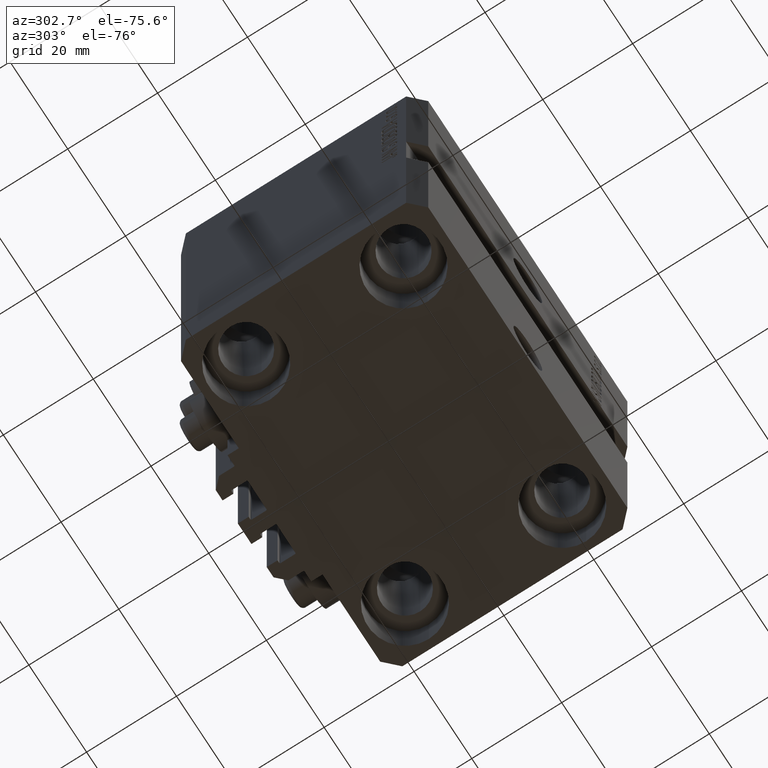
[diagram: clean part render]
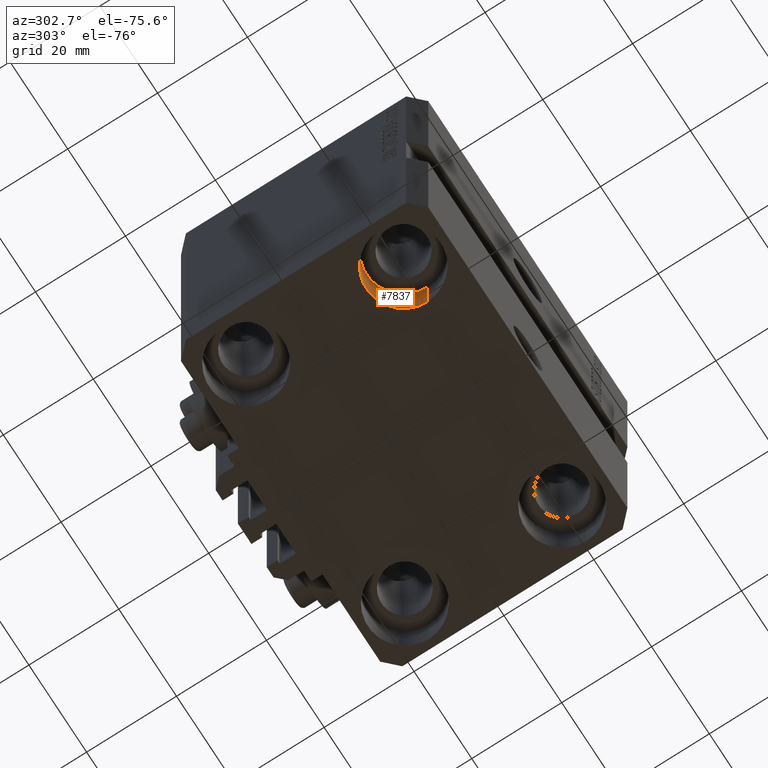
[diagram: same view with one face highlighted and labeled with its STEP entity id]
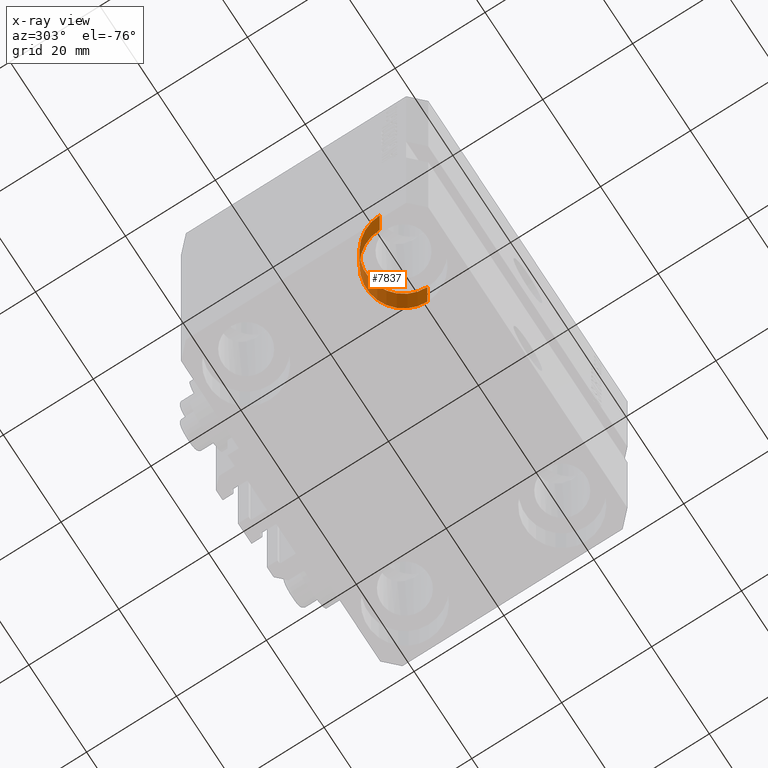
[diagram: x-ray of the same camera — body ghosted, the highlighted face saturated]
A machine part, auxiliary view. The second image highlights one B-rep face of the part: STEP entity #7837.
The next image is the same camera in x-ray: the body ghosted, the highlighted face saturated — about 0% of this face is hidden behind the body in this view.
In plain terms, the highlighted cylindrical surface (partial cylindrical patch) has radius 8.25 mm, axis along (-0, -0, -1).
Its self-contained STEP definition (entity closure, byte-faithful):
#519 = VECTOR ( 'NONE', #42069, 1000.000000000000000 ) ;
#548 = CARTESIAN_POINT ( 'NONE',  ( -19.25000000000000355, -17.50000000000000000, -69.00000000000000000 ) ) ;
#860 = ORIENTED_EDGE ( 'NONE', *, *, #17240, .T. ) ;
#1710 = CIRCLE ( 'NONE', #34981, 8.250000000000000000 ) ;
#1987 = CIRCLE ( 'NONE', #5667, 8.250000000000000000 ) ;
#2117 = CARTESIAN_POINT ( 'NONE',  ( -35.75000000000000711, -17.50000000000000000, -69.00000000000000000 ) ) ;
#4076 = EDGE_CURVE ( 'NONE', #44879, #23523, #1710, .T. ) ;
#5261 = EDGE_CURVE ( 'NONE', #44879, #27814, #32540, .T. ) ;
#5363 = DIRECTION ( 'NONE',  ( 1.000000000000000000, 0.000000000000000000, 0.000000000000000000 ) ) ;
#5667 = AXIS2_PLACEMENT_3D ( 'NONE', #19569, #34022, #5363 ) ;
#7779 = VERTEX_POINT ( 'NONE', #19137 ) ;
#7837 = ADVANCED_FACE ( 'NONE', ( #44026 ), #25999, .F. ) ;
#11207 = CARTESIAN_POINT ( 'NONE',  ( -27.50000000000000355, -17.50000000000000000, -69.00000000000000000 ) ) ;
#11663 = EDGE_CURVE ( 'NONE', #27814, #7779, #1987, .T. ) ;
#13198 = EDGE_LOOP ( 'NONE', ( #45162, #32243, #860, #28675 ) ) ;
#14738 = DIRECTION ( 'NONE',  ( 1.000000000000000000, 0.000000000000000000, 0.000000000000000000 ) ) ;
#17240 = EDGE_CURVE ( 'NONE', #23523, #7779, #30687, .T. ) ;
#19137 = CARTESIAN_POINT ( 'NONE',  ( -35.75000000000000711, -17.50000000000000000, -80.00000000000000000 ) ) ;
#19569 = CARTESIAN_POINT ( 'NONE',  ( -27.50000000000000355, -17.50000000000000000, -80.00000000000000000 ) ) ;
#22462 = DIRECTION ( 'NONE',  ( -0.000000000000000000, -0.000000000000000000, -1.000000000000000000 ) ) ;
#23523 = VERTEX_POINT ( 'NONE', #2117 ) ;
#25467 = CARTESIAN_POINT ( 'NONE',  ( -19.25000000000000355, -17.50000000000000000, -80.00000000000000000 ) ) ;
#25999 = CYLINDRICAL_SURFACE ( 'NONE', #39688, 8.250000000000000000 ) ;
#27814 = VERTEX_POINT ( 'NONE', #25467 ) ;
#28675 = ORIENTED_EDGE ( 'NONE', *, *, #11663, .F. ) ;
#30687 = LINE ( 'NONE', #38267, #519 ) ;
#32243 = ORIENTED_EDGE ( 'NONE', *, *, #4076, .T. ) ;
#32540 = LINE ( 'NONE', #548, #36535 ) ;
#33004 = DIRECTION ( 'NONE',  ( -0.000000000000000000, -0.000000000000000000, 1.000000000000000000 ) ) ;
#34022 = DIRECTION ( 'NONE',  ( -0.000000000000000000, -0.000000000000000000, 1.000000000000000000 ) ) ;
#34981 = AXIS2_PLACEMENT_3D ( 'NONE', #11207, #33004, #14738 ) ;
#36535 = VECTOR ( 'NONE', #43898, 1000.000000000000000 ) ;
#36912 = DIRECTION ( 'NONE',  ( -1.000000000000000000, 0.000000000000000000, 0.000000000000000000 ) ) ;
#38267 = CARTESIAN_POINT ( 'NONE',  ( -35.75000000000000711, -17.50000000000000000, -69.00000000000000000 ) ) ;
#39688 = AXIS2_PLACEMENT_3D ( 'NONE', #40469, #22462, #36912 ) ;
#39936 = CARTESIAN_POINT ( 'NONE',  ( -19.25000000000000355, -17.50000000000000000, -69.00000000000000000 ) ) ;
#40469 = CARTESIAN_POINT ( 'NONE',  ( -27.50000000000000355, -17.50000000000000000, -69.00000000000000000 ) ) ;
#42069 = DIRECTION ( 'NONE',  ( -0.000000000000000000, -0.000000000000000000, -1.000000000000000000 ) ) ;
#43898 = DIRECTION ( 'NONE',  ( -0.000000000000000000, -0.000000000000000000, -1.000000000000000000 ) ) ;
#44026 = FACE_OUTER_BOUND ( 'NONE', #13198, .T. ) ;
#44879 = VERTEX_POINT ( 'NONE', #39936 ) ;
#45162 = ORIENTED_EDGE ( 'NONE', *, *, #5261, .F. ) ;